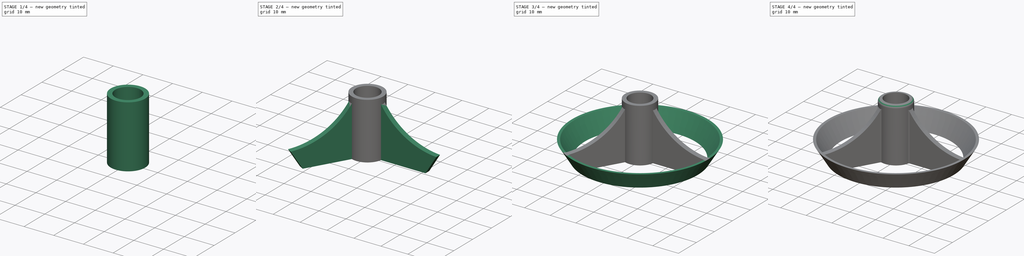
[diagram: build sequence overview — one tinted view per stage of 4, left to right]
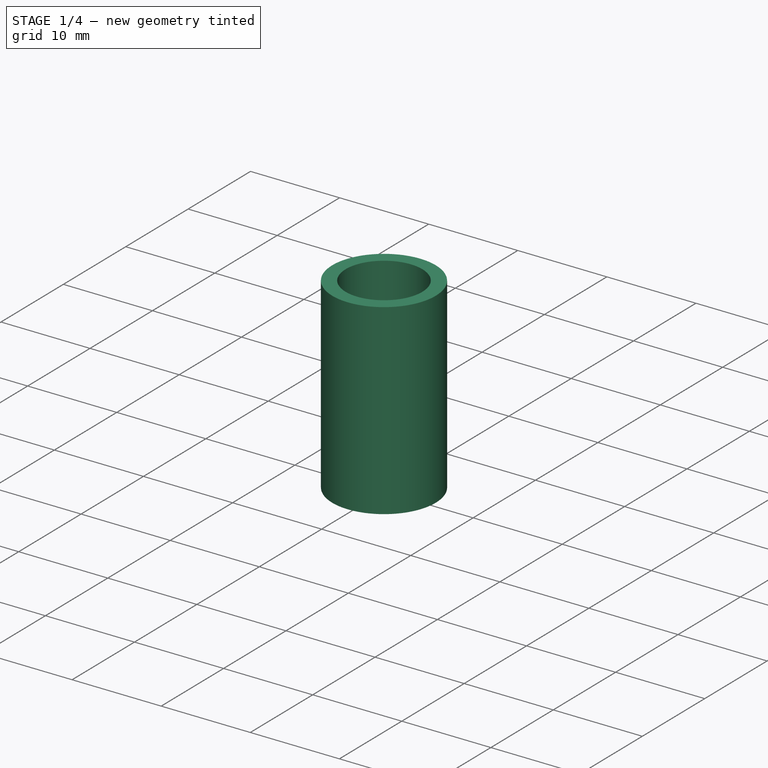
[diagram: stage 1 of 4 — iso view after this stage's code; geometry added in this stage tinted green]
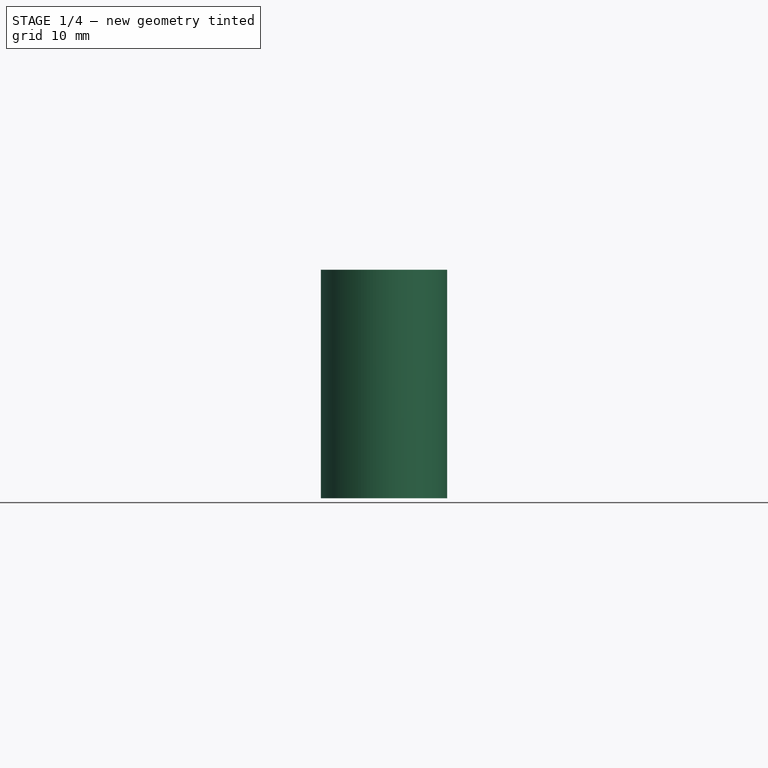
[diagram: stage 1 of 4 — front view after this stage's code; geometry added in this stage tinted green]
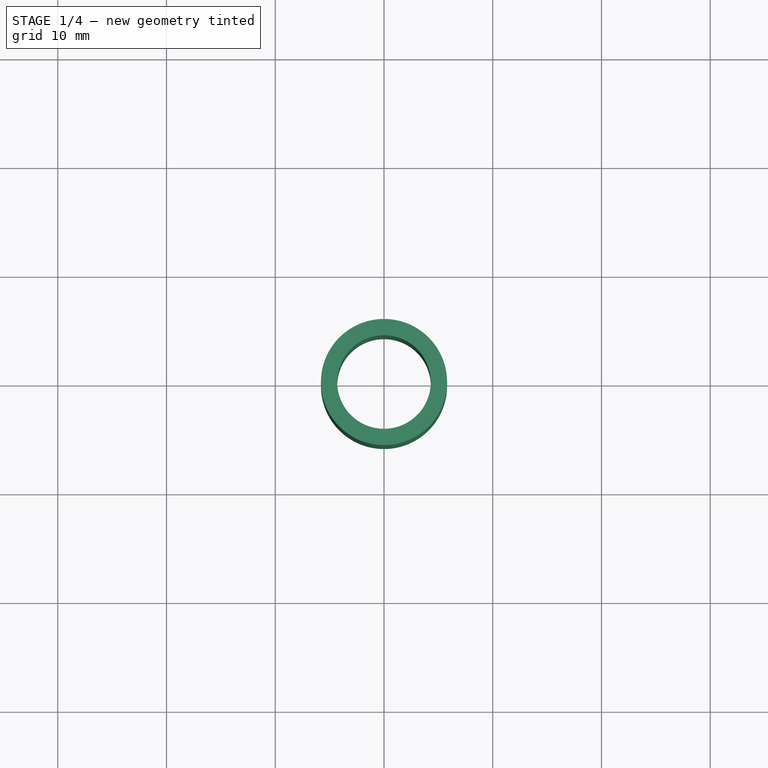
[diagram: stage 1 of 4 — top view after this stage's code; geometry added in this stage tinted green]
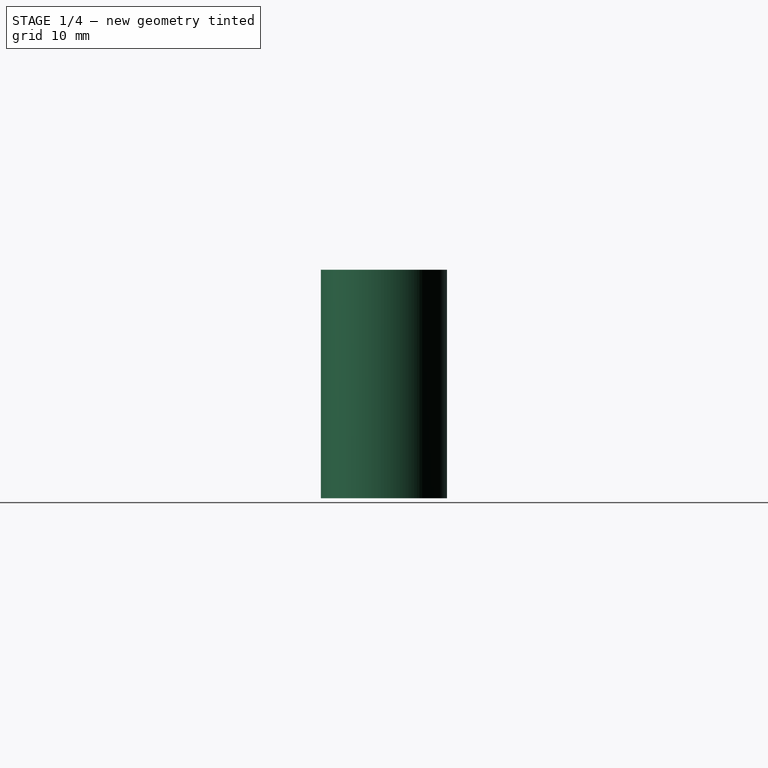
[diagram: stage 1 of 4 — right view after this stage's code; geometry added in this stage tinted green]
FCSTD DOCUMENT  (FreeCAD 0.18R16131 (Git))
Label: gimbals
License: All rights reserved
LicenseURL: http://en.wikipedia.org/wiki/All_rights_reserved
objects: PartDesign::Body×3, Part::MultiFuse×2, Sketcher::SketchObject×1, PartDesign::Pad×1, Part::FeaturePython×1, PartDesign::AdditiveCylinder×1, PartDesign::Thickness×1, PartDesign::AdditiveCone×1, PartDesign::SubtractiveCone×1, Part::Fillet×1
note: 17 computed .brp shape members not serialized (recipe doc carries the construction recipe); baked Part::Feature solids carry a one-line shape summary decoded from their .brp

FEATURE [PartDesign::AdditiveCylinder] Cylinder
  Angle = 360
  AttacherType = Attacher::AttachEngine3D
  Height = 21
  Radius = 4.3
FEATURE [PartDesign::Thickness] Thickness
  Base = -> Cylinder [Face2,Face3]
  BaseFeature = -> Cylinder
  Join = 0
  Mode = 0
  Value = 1.5
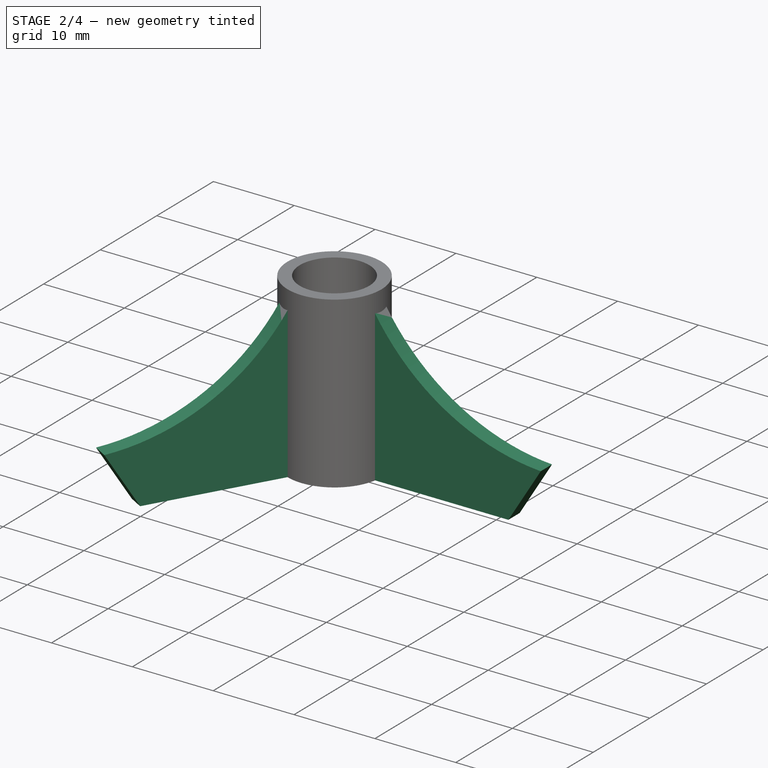
[diagram: stage 2 of 4 — iso view after this stage's code; geometry added in this stage tinted green]
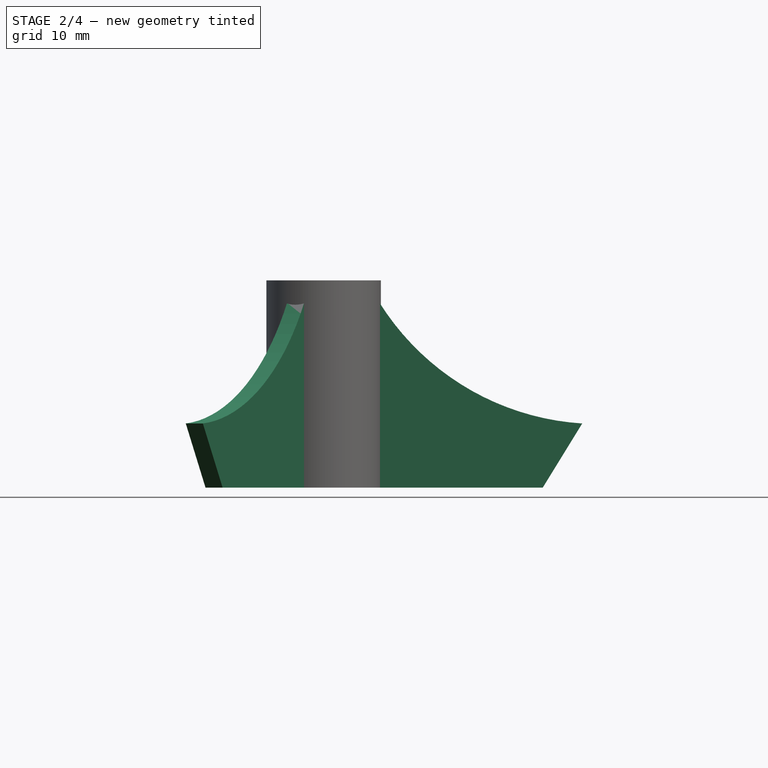
[diagram: stage 2 of 4 — front view after this stage's code; geometry added in this stage tinted green]
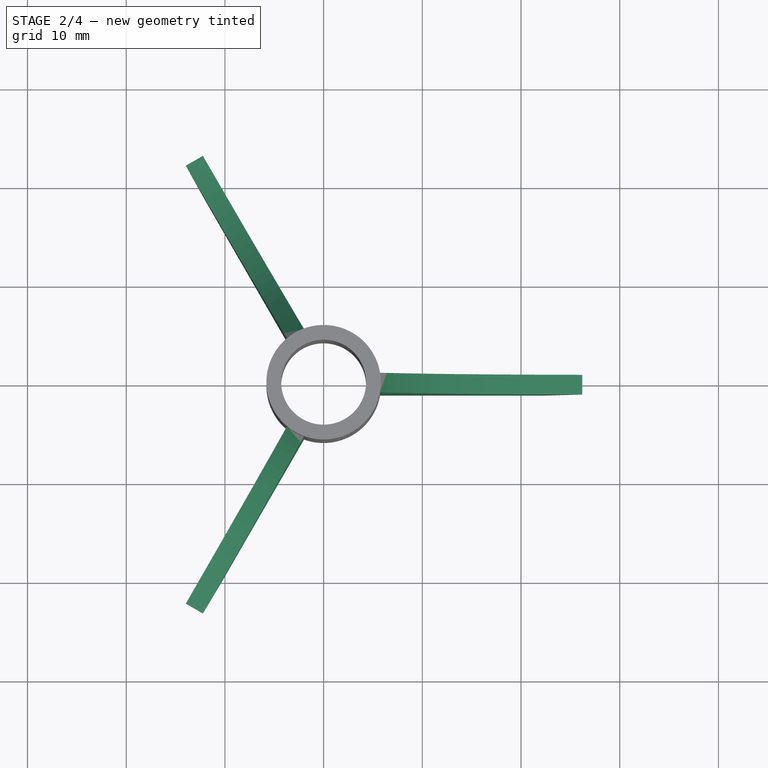
[diagram: stage 2 of 4 — top view after this stage's code; geometry added in this stage tinted green]
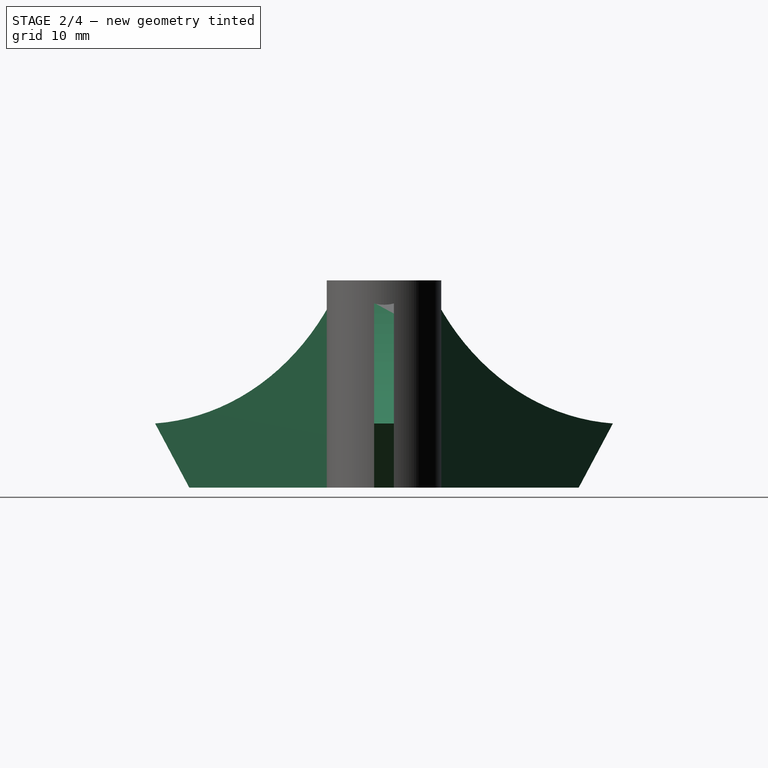
[diagram: stage 2 of 4 — right view after this stage's code; geometry added in this stage tinted green]
FEATURE [Sketcher::SketchObject] Sketch
  MapMode = 5
  Placement = pos=(0,0,0) rot=(1,0,0;1.5708rad)
  Support = -> [XZ_Plane]
  sketch-geometry (4):
    g0: LineSegment StartX=4.4 StartY=21 StartZ=0 EndX=4.4 EndY=0 EndZ=0
    g1: LineSegment StartX=4.4 StartY=0 StartZ=0 EndX=22.2 EndY=0 EndZ=0
    g2: LineSegment StartX=22.2 StartY=0 StartZ=0 EndX=26.2 EndY=6.5 EndZ=0
    g3: ArcOfCircle CenterX=27.8574 CenterY=32.6294 CenterZ=0 NormalX=0 NormalY=0 NormalZ=1 AngleXU=0 Radius=26.1819 StartAngle=3.60185 EndAngle=4.64904
  constraints (13):
    c: PointOnObject(g0,g-1)
    c: Vertical(g0)
    c: Coincident(g0,g1)
    c: Horizontal(g1)
    c: Coincident(g1,g2)
    c: Distance(g-1,g0) = 4.4
    c: DistanceX(g1,g1) = 17.8
    c: DistanceX(g2,g2) = 4
    c: DistanceY(g2,g2) = 6.5
    c: DistanceY(g0,g0) = 21
    c: Coincident(g3,g0)
    c: Coincident(g3,g2)
    c: Angle(g3) = 1.0472
FEATURE [PartDesign::Pad] Pad
  Length = 2
  Length2 = 100
  Midplane = true
  Placement = pos=(0,0,0) rot=(1,0,0;1.5708rad)
  Profile = -> Sketch
  Type = 0
FEATURE [PartDesign::Body] Body
  Group = -> [Sketch,Pad]
  Origin = -> Origin
  Tip = -> Pad
FEATURE [Part::FeaturePython] Array  # Draft array (typed FeaturePython)
  Angle = 360
  ArrayType = 1
  Axis = (0,0,1)
  Base = -> Pad
  Center = (0,0,0)
  Fuse = false
  IntervalAxis = (0,0,0)
  IntervalX = (1,0,0)
  IntervalY = (0,1,0)
  IntervalZ = (0,0,1)
  NumberPolar = 3
  NumberX = 2
  NumberY = 2
  NumberZ = 1
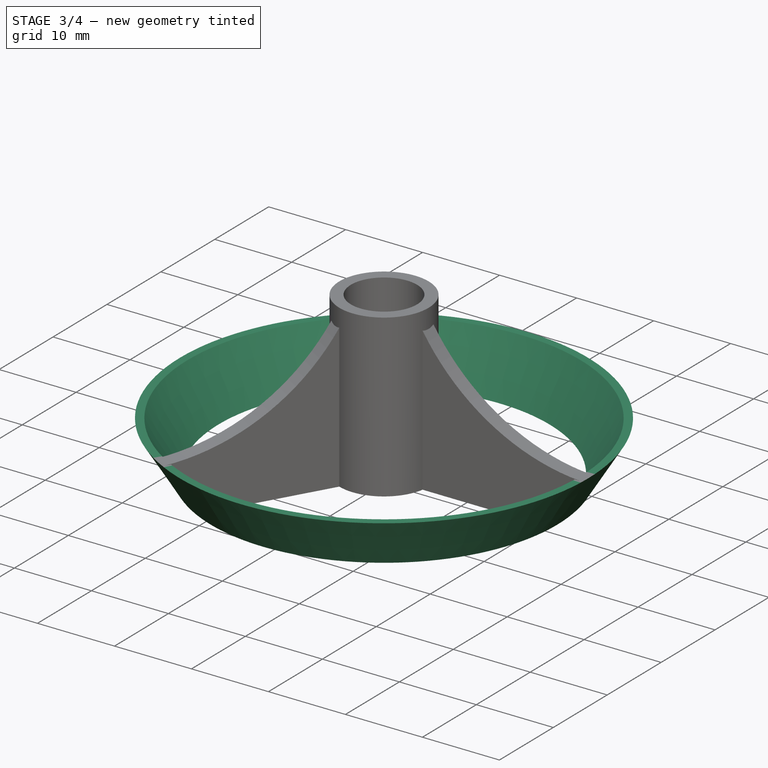
[diagram: stage 3 of 4 — iso view after this stage's code; geometry added in this stage tinted green]
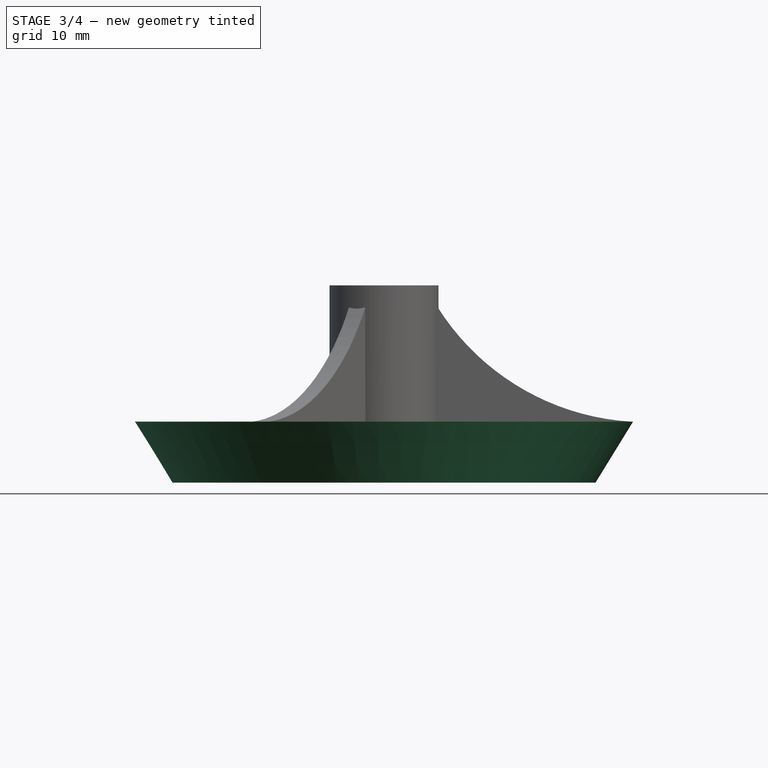
[diagram: stage 3 of 4 — front view after this stage's code; geometry added in this stage tinted green]
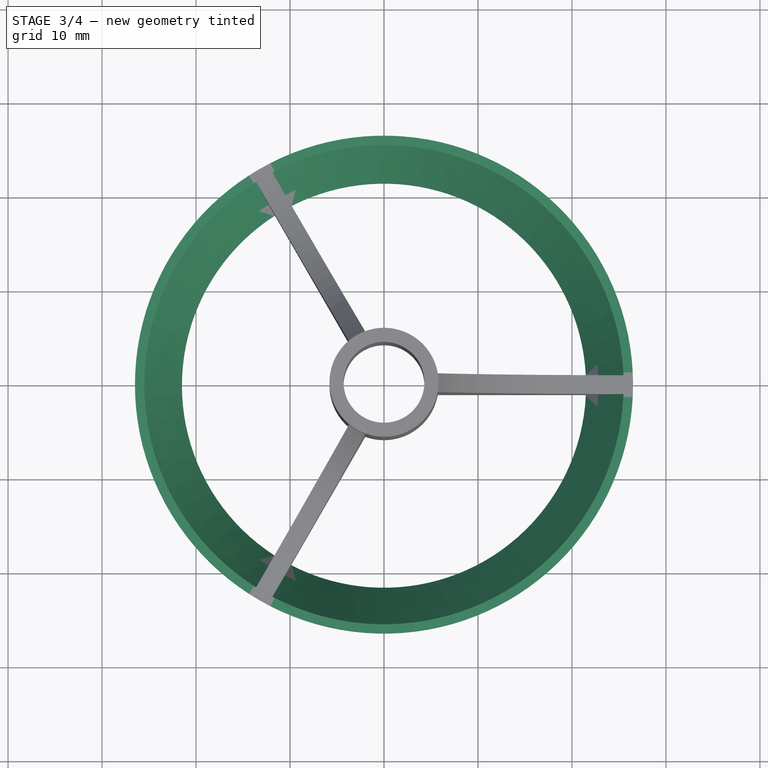
[diagram: stage 3 of 4 — top view after this stage's code; geometry added in this stage tinted green]
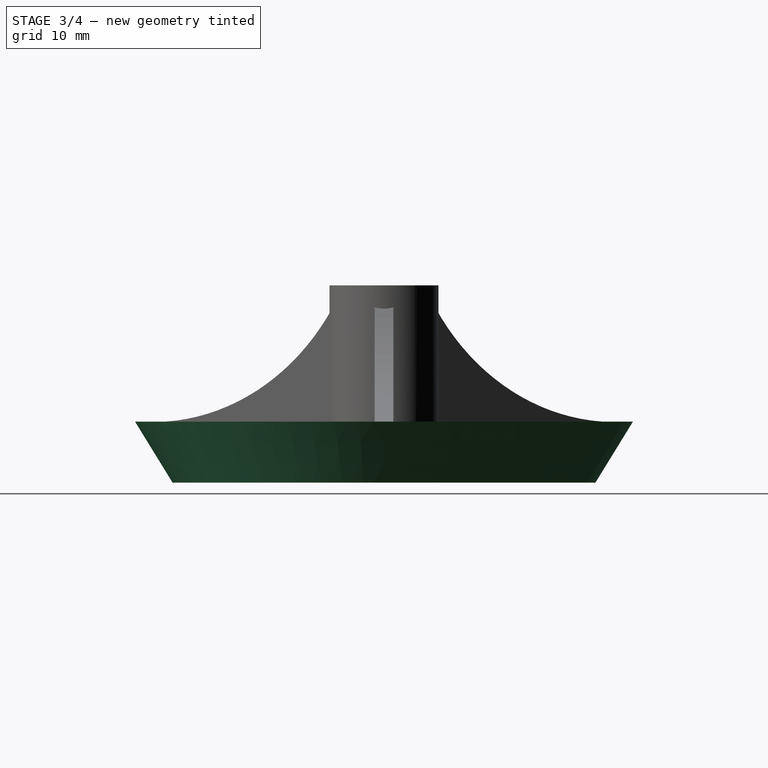
[diagram: stage 3 of 4 — right view after this stage's code; geometry added in this stage tinted green]
FEATURE [PartDesign::Body] Body001
  Group = -> [Cylinder,Thickness]
  Origin = -> Origin001
  Tip = -> Thickness
FEATURE [PartDesign::AdditiveCone] Cone
  Angle = 360
  AttacherType = Attacher::AttachEngine3D
  Height = 6.5
  Radius1 = 22.5
  Radius2 = 26.5
  expr: Radius2 = 53 / 2
  expr: Radius1 = 45 / 2
FEATURE [PartDesign::SubtractiveCone] Cone001
  Angle = 360
  AttacherType = Attacher::AttachEngine3D
  BaseFeature = -> Cone
  Height = 6.5
  Radius1 = 21.5
  Radius2 = 25.5
  expr: Radius2 = 51 / 2
  expr: Radius1 = 43 / 2
FEATURE [PartDesign::Body] Body002
  Group = -> [Cone,Cone001]
  Origin = -> Origin002
  Tip = -> Cone001
FEATURE [Part::MultiFuse] Fusion
  Shapes = -> [Array,Body001]
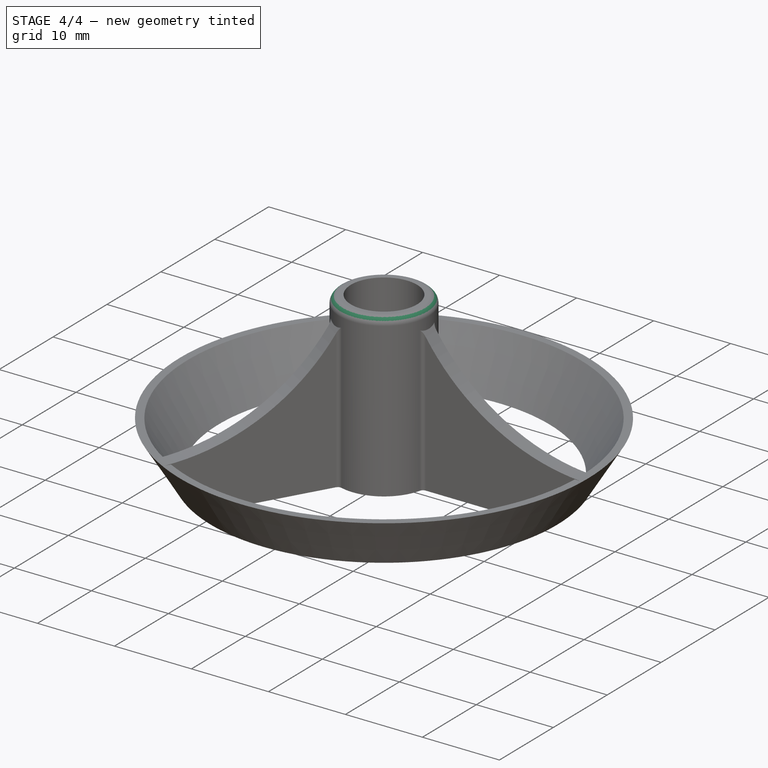
[diagram: stage 4 of 4 — iso view after this stage's code; geometry added in this stage tinted green]
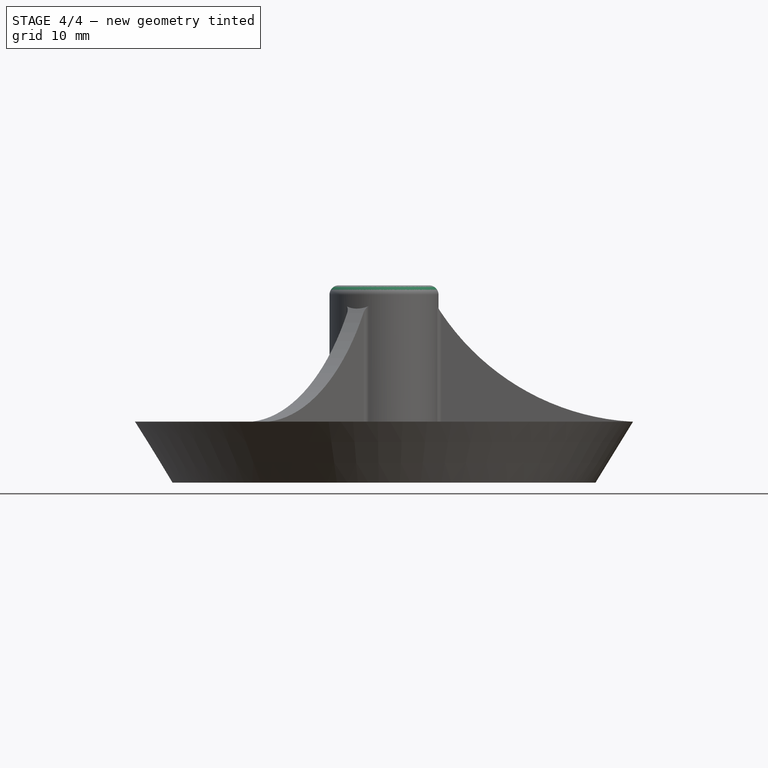
[diagram: stage 4 of 4 — front view after this stage's code; geometry added in this stage tinted green]
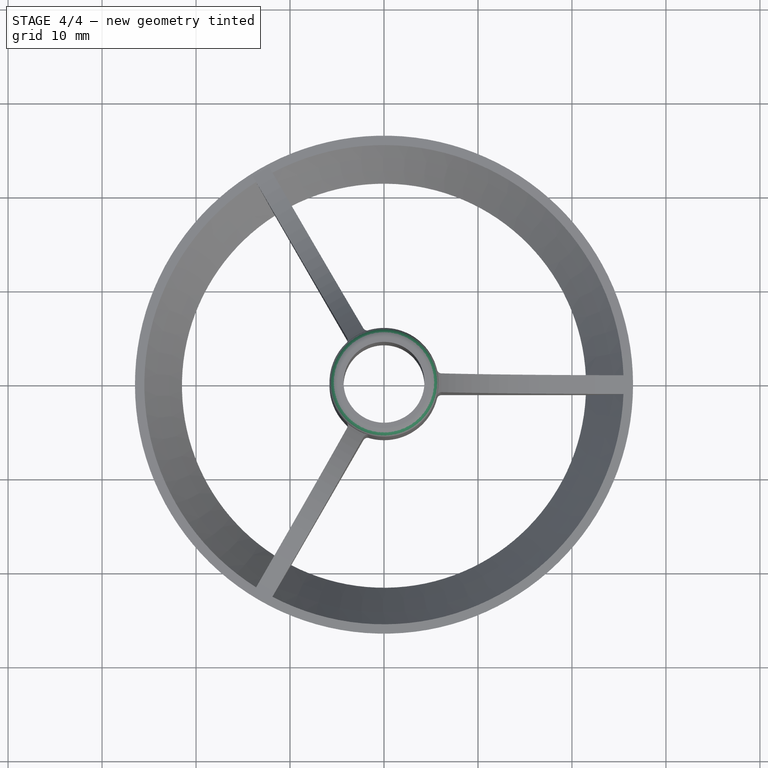
[diagram: stage 4 of 4 — top view after this stage's code; geometry added in this stage tinted green]
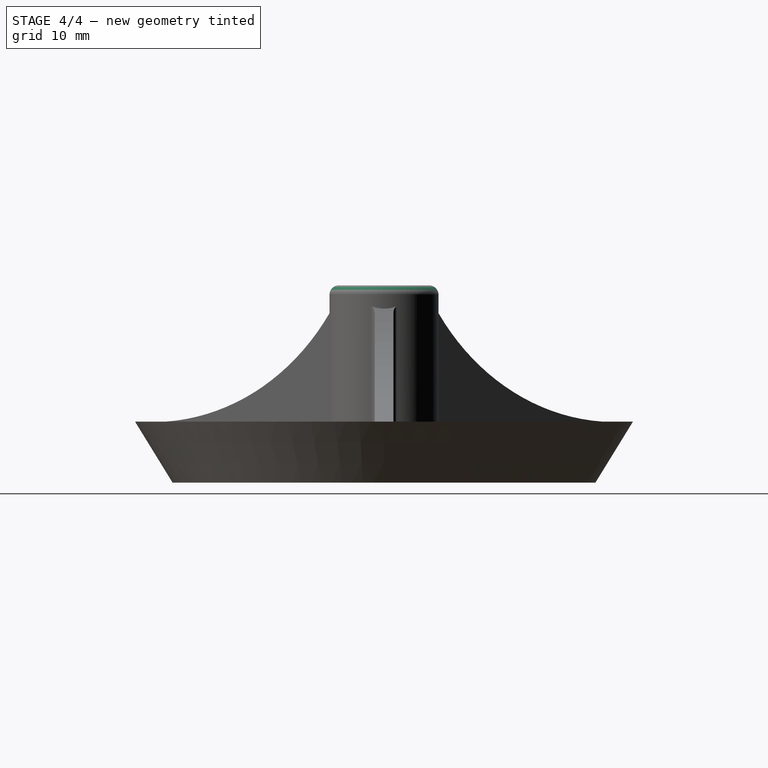
[diagram: stage 4 of 4 — right view after this stage's code; geometry added in this stage tinted green]
FEATURE [Part::MultiFuse] Fusion001
  Shapes = -> [Fusion,Body002]
FEATURE [Part::Fillet] Fillet
  Base = -> Fusion001
  Edges = 7 edges: [Edge32 r=0.5,Edge37 r=0.5,Edge41 r=0.5,Edge46 r=0.5,Edge50 r=0.5,Edge55 r=0.5,Edge65 r=1]
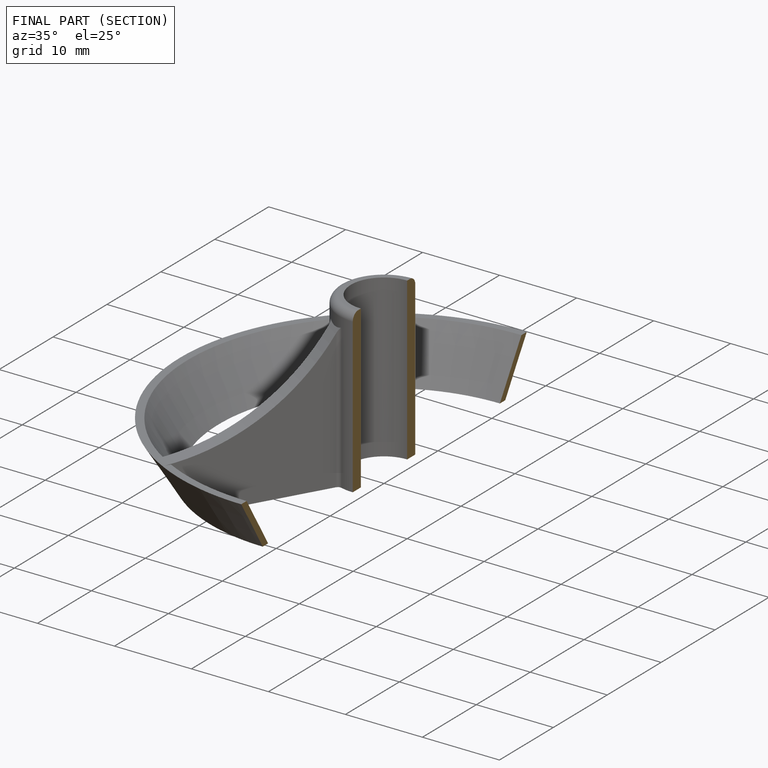
[diagram: finished part — half-section view (interior)]
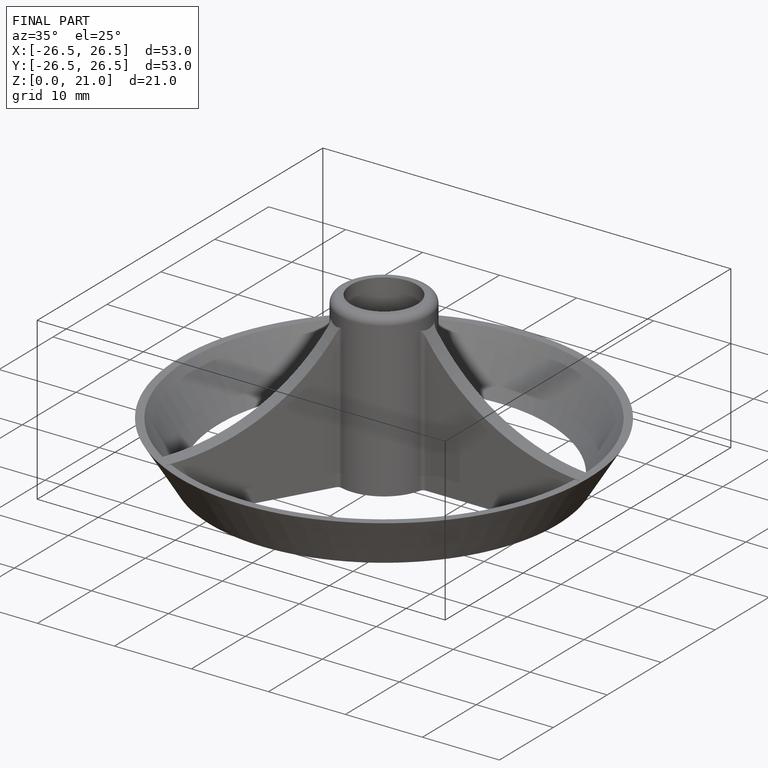
[diagram: finished part — iso view with bounding-box wireframe]
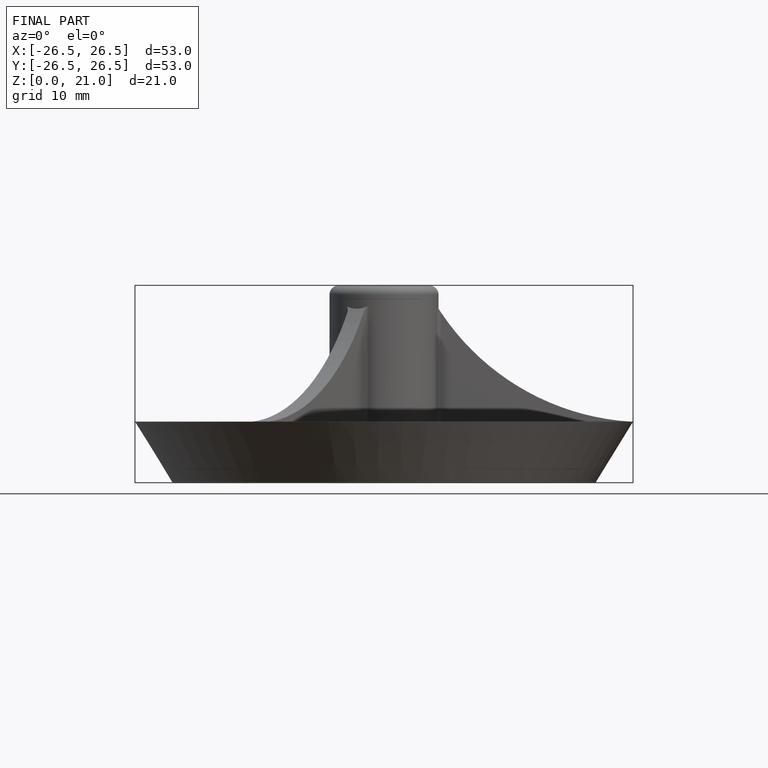
[diagram: finished part — front view with bounding-box wireframe]
